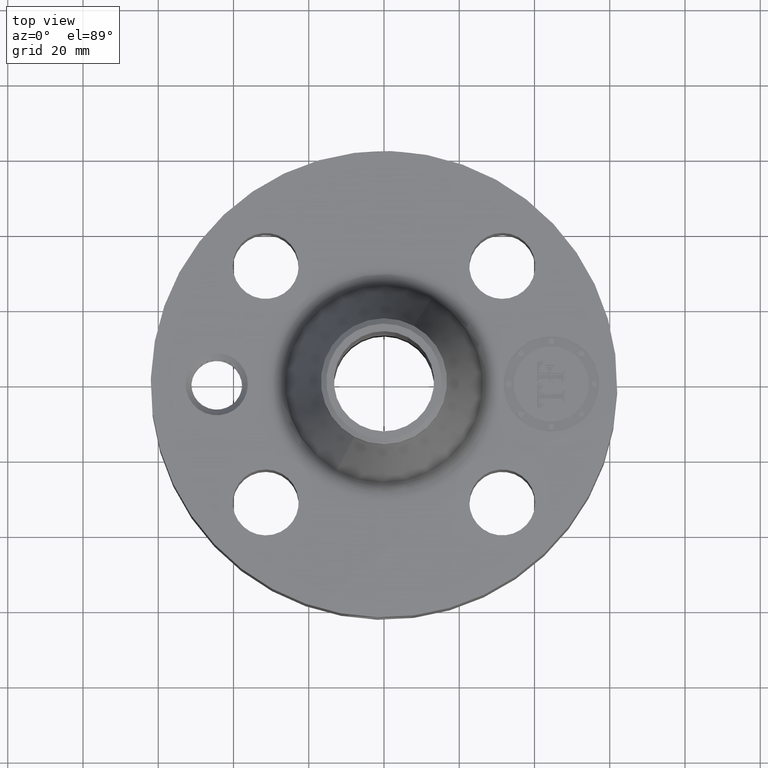
[diagram: clean part render]
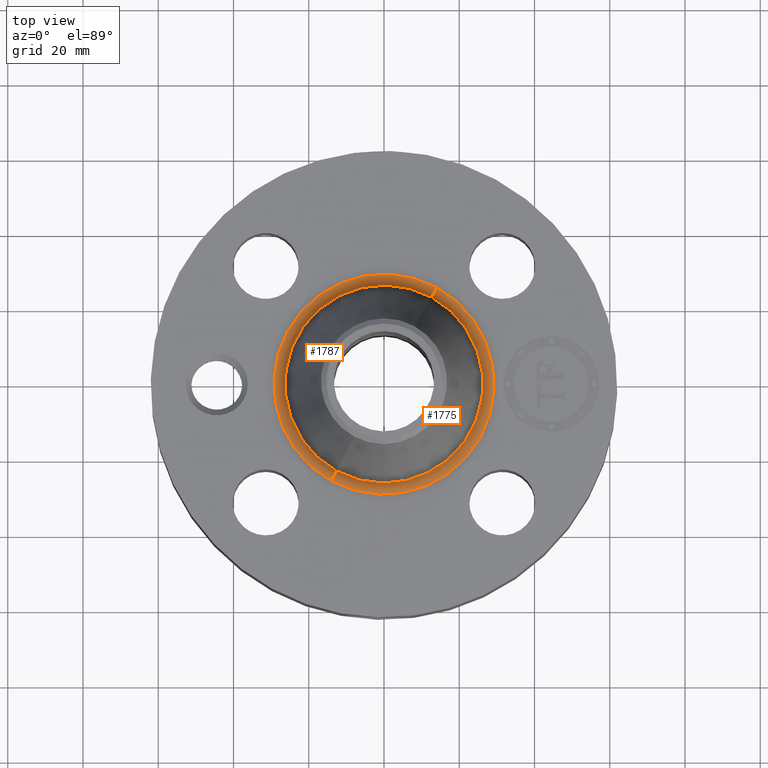
[diagram: same view with one multi-face feature highlighted, each face labeled with its STEP entity id]
A machine part, top view. The highlighted faces form ONE feature: a constant-radius fillet chain: 2 tangent blend faces with common blend radius 3.048 mm. The faces share edges in the B-rep.
Their STEP definitions:
[1] entity #1775 (Torus):
#502=AXIS2_PLACEMENT_3D('Circle Axis2P3D',#500,#501,$) ;
#1748=AXIS2_PLACEMENT_3D('Torus Axis2P3D',#1745,#1746,#1747) ;
#1752=AXIS2_PLACEMENT_3D('Circle Axis2P3D',#1750,#1751,$) ;
#1759=AXIS2_PLACEMENT_3D('Circle Axis2P3D',#1757,#1758,$) ;
#1766=AXIS2_PLACEMENT_3D('Circle Axis2P3D',#1764,#1765,$) ;
#495=CARTESIAN_POINT('Vertex',(-0.552161062108,-1.0107240446,1.56000000001)) ;
#497=CARTESIAN_POINT('Vertex',(0.552161062108,1.0107240446,1.56000000001)) ;
#500=CARTESIAN_POINT('Axis2P3D Location',(0.,0.,1.56000000001)) ;
#1745=CARTESIAN_POINT('Axis2P3D Location',(0.,0.,1.68000000001)) ;
#1750=CARTESIAN_POINT('Axis2P3D Location',(0.552161062108,1.0107240446,1.68000000001)) ;
#1754=CARTESIAN_POINT('Vertex',(0.496647878182,0.909107843027,1.64849707969)) ;
#1757=CARTESIAN_POINT('Axis2P3D Location',(0.,0.,1.64849707969)) ;
#1761=CARTESIAN_POINT('Vertex',(-0.496647878182,-0.909107843027,1.64849707969)) ;
#1764=CARTESIAN_POINT('Axis2P3D Location',(-0.552161062108,-1.0107240446,1.68000000001)) ;
#501=DIRECTION('Axis2P3D Direction',(0.,0.,-0.0393700787402)) ;
#1746=DIRECTION('Axis2P3D Direction',(0.,0.,-0.0393700787402)) ;
#1747=DIRECTION('Axis2P3D XDirection',(-0.0188750212049,-0.0345504945626,0.)) ;
#1751=DIRECTION('Axis2P3D Direction',(-0.0345504945626,0.0188750212049,0.)) ;
#1758=DIRECTION('Axis2P3D Direction',(0.,0.,-0.0393700787402)) ;
#1765=DIRECTION('Axis2P3D Direction',(0.0345504945626,-0.0188750212049,0.)) ;
#1770=ORIENTED_EDGE('',*,*,#504,.F.) ;
#1771=ORIENTED_EDGE('',*,*,#1756,.T.) ;
#1772=ORIENTED_EDGE('',*,*,#1763,.T.) ;
#1773=ORIENTED_EDGE('',*,*,#1768,.F.) ;
#1775=ADVANCED_FACE('PartBody',(#1774),#1749,.F.) ;
#503=CIRCLE('generated circle',#502,1.15171391102) ;
#1753=CIRCLE('generated circle',#1752,0.12) ;
#1760=CIRCLE('generated circle',#1759,1.03592286641) ;
#1767=CIRCLE('generated circle',#1766,0.12) ;
#1749=TOROIDAL_SURFACE('homeo Torus',#1748,1.15171391102,0.12) ;
#504=EDGE_CURVE('',#498,#496,#503,.T.) ;
#1756=EDGE_CURVE('',#498,#1755,#1753,.T.) ;
#1763=EDGE_CURVE('',#1755,#1762,#1760,.T.) ;
#1768=EDGE_CURVE('',#496,#1762,#1767,.T.) ;
#1769=EDGE_LOOP('',(#1770,#1771,#1772,#1773)) ;
#1774=FACE_OUTER_BOUND('',#1769,.T.) ;
#496=VERTEX_POINT('',#495) ;
#498=VERTEX_POINT('',#497) ;
#1755=VERTEX_POINT('',#1754) ;
#1762=VERTEX_POINT('',#1761) ;
[2] entity #1787 (Torus):
#493=AXIS2_PLACEMENT_3D('Circle Axis2P3D',#491,#492,$) ;
#1748=AXIS2_PLACEMENT_3D('Torus Axis2P3D',#1745,#1746,#1747) ;
#1752=AXIS2_PLACEMENT_3D('Circle Axis2P3D',#1750,#1751,$) ;
#1766=AXIS2_PLACEMENT_3D('Circle Axis2P3D',#1764,#1765,$) ;
#1778=AXIS2_PLACEMENT_3D('Circle Axis2P3D',#1776,#1777,$) ;
#491=CARTESIAN_POINT('Axis2P3D Location',(0.,0.,1.56000000001)) ;
#495=CARTESIAN_POINT('Vertex',(-0.552161062108,-1.0107240446,1.56000000001)) ;
#497=CARTESIAN_POINT('Vertex',(0.552161062108,1.0107240446,1.56000000001)) ;
#1745=CARTESIAN_POINT('Axis2P3D Location',(0.,0.,1.68000000001)) ;
#1750=CARTESIAN_POINT('Axis2P3D Location',(0.552161062108,1.0107240446,1.68000000001)) ;
#1754=CARTESIAN_POINT('Vertex',(0.496647878182,0.909107843027,1.64849707969)) ;
#1761=CARTESIAN_POINT('Vertex',(-0.496647878182,-0.909107843027,1.64849707969)) ;
#1764=CARTESIAN_POINT('Axis2P3D Location',(-0.552161062108,-1.0107240446,1.68000000001)) ;
#1776=CARTESIAN_POINT('Axis2P3D Location',(0.,0.,1.64849707969)) ;
#492=DIRECTION('Axis2P3D Direction',(0.,0.,-0.0393700787402)) ;
#1746=DIRECTION('Axis2P3D Direction',(0.,0.,-0.0393700787402)) ;
#1747=DIRECTION('Axis2P3D XDirection',(-0.0188750212049,-0.0345504945626,0.)) ;
#1751=DIRECTION('Axis2P3D Direction',(-0.0345504945626,0.0188750212049,0.)) ;
#1765=DIRECTION('Axis2P3D Direction',(0.0345504945626,-0.0188750212049,0.)) ;
#1777=DIRECTION('Axis2P3D Direction',(0.,0.,-0.0393700787402)) ;
#1782=ORIENTED_EDGE('',*,*,#499,.F.) ;
#1783=ORIENTED_EDGE('',*,*,#1768,.T.) ;
#1784=ORIENTED_EDGE('',*,*,#1780,.T.) ;
#1785=ORIENTED_EDGE('',*,*,#1756,.F.) ;
#1787=ADVANCED_FACE('PartBody',(#1786),#1749,.F.) ;
#494=CIRCLE('generated circle',#493,1.15171391102) ;
#1753=CIRCLE('generated circle',#1752,0.12) ;
#1767=CIRCLE('generated circle',#1766,0.12) ;
#1779=CIRCLE('generated circle',#1778,1.03592286641) ;
#1749=TOROIDAL_SURFACE('homeo Torus',#1748,1.15171391102,0.12) ;
#499=EDGE_CURVE('',#496,#498,#494,.T.) ;
#1756=EDGE_CURVE('',#498,#1755,#1753,.T.) ;
#1768=EDGE_CURVE('',#496,#1762,#1767,.T.) ;
#1780=EDGE_CURVE('',#1762,#1755,#1779,.T.) ;
#1781=EDGE_LOOP('',(#1782,#1783,#1784,#1785)) ;
#1786=FACE_OUTER_BOUND('',#1781,.T.) ;
#496=VERTEX_POINT('',#495) ;
#498=VERTEX_POINT('',#497) ;
#1755=VERTEX_POINT('',#1754) ;
#1762=VERTEX_POINT('',#1761) ;